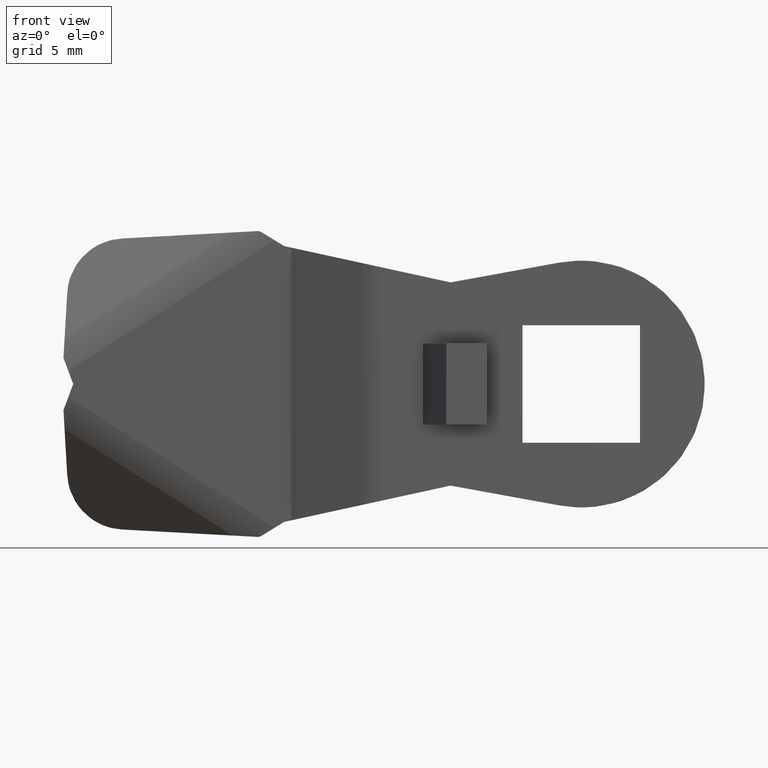
[diagram: clean part render]
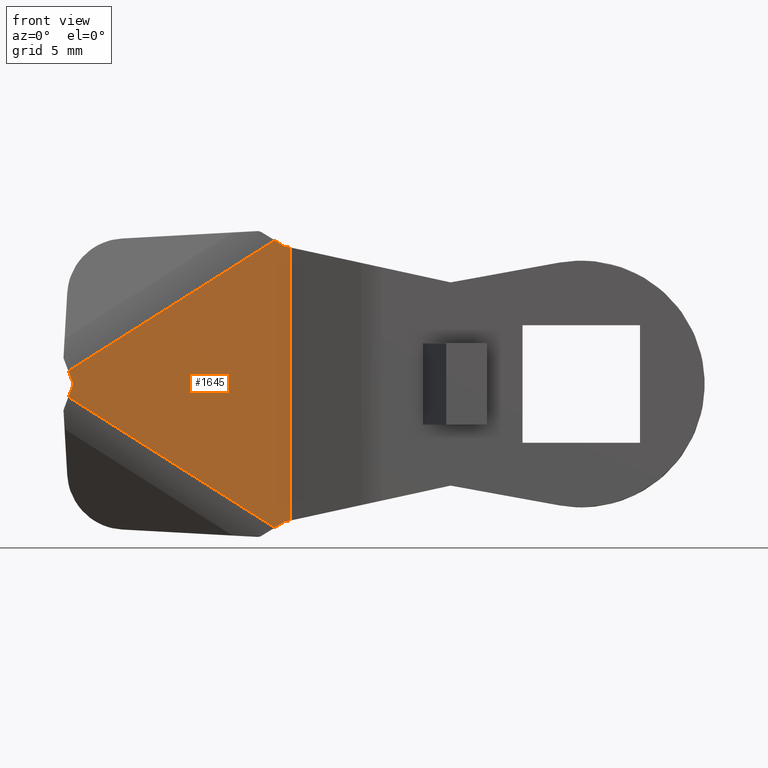
[diagram: same view with one face highlighted and labeled with its STEP entity id]
A machine part, front view. The second image highlights one B-rep face of the part: STEP entity #1645.
In plain terms, the highlighted face is a freeform B-spline surface patch.
Its self-contained STEP definition (entity closure, byte-faithful):
#300=CARTESIAN_POINT('',(-20.008840012867449,-4.000000189989805,-9.400356309381088));
#301=VERTEX_POINT('',#300);
#322=CARTESIAN_POINT('',(-20.008840012867449,-4.000000189989805,9.400356309381129));
#323=VERTEX_POINT('',#322);
#337=CARTESIAN_POINT('',(-20.008840012867449,-4.000000189989805,-9.400356309381088));
#338=CARTESIAN_POINT('',(-20.008840012867449,-4.000000189989805,9.400356309381129));
#339=QUASI_UNIFORM_CURVE('',1,(#337,#338),.UNSPECIFIED.,.F.,.U.);
#340=EDGE_CURVE('',#301,#323,#339,.T.);
#420=CARTESIAN_POINT('',(-21.120222960138801,-4.000000189989805,9.901939888109700));
#421=VERTEX_POINT('',#420);
#473=CARTESIAN_POINT('',(-35.335924522680997,-4.000000189989805,0.898662231830771));
#474=VERTEX_POINT('',#473);
#488=CARTESIAN_POINT('',(-21.120222960138801,-4.000000189989805,9.901939888109700));
#489=CARTESIAN_POINT('',(-35.335924522680997,-4.000000189989805,0.898662231830771));
#490=QUASI_UNIFORM_CURVE('',1,(#488,#489),.UNSPECIFIED.,.F.,.U.);
#491=EDGE_CURVE('',#421,#474,#490,.T.);
#526=CARTESIAN_POINT('',(-21.120222960138801,-4.000000189989805,-9.901939888109700));
#527=VERTEX_POINT('',#526);
#541=CARTESIAN_POINT('',(-35.335924522680898,-4.000000189989805,-0.898662231830660));
#542=VERTEX_POINT('',#541);
#543=CARTESIAN_POINT('',(-35.335924522680898,-4.000000189989805,-0.898662231830660));
#544=CARTESIAN_POINT('',(-21.120222960138801,-4.000000189989805,-9.901939888109700));
#545=QUASI_UNIFORM_CURVE('',1,(#543,#544),.UNSPECIFIED.,.F.,.U.);
#546=EDGE_CURVE('',#542,#527,#545,.T.);
#969=CARTESIAN_POINT('',(-35.000001662411087,-4.000000189989805,1.136868E-013));
#970=VERTEX_POINT('',#969);
#971=CARTESIAN_POINT('',(-35.335924522680898,-4.000000189989805,-0.898662231830660));
#972=CARTESIAN_POINT('',(-35.000001662411087,-4.000000189989805,1.136868E-013));
#973=QUASI_UNIFORM_CURVE('',1,(#971,#972),.UNSPECIFIED.,.F.,.U.);
#974=EDGE_CURVE('',#542,#970,#973,.T.);
#1003=CARTESIAN_POINT('',(-35.000001662411087,-4.000000189989805,1.136868E-013));
#1004=CARTESIAN_POINT('',(-35.335924522680997,-4.000000189989805,0.898662231830771));
#1005=QUASI_UNIFORM_CURVE('',1,(#1003,#1004),.UNSPECIFIED.,.F.,.U.);
#1006=EDGE_CURVE('',#970,#474,#1005,.T.);
#1127=CARTESIAN_POINT('',(-20.465839481394600,-4.000000189989805,-9.500000000000000));
#1128=VERTEX_POINT('',#1127);
#1134=CARTESIAN_POINT('',(-20.465839481394600,-4.000000189989805,-9.500000000000000));
#1135=CARTESIAN_POINT('',(-21.120222960138801,-4.000000189989805,-9.901939888109700));
#1136=QUASI_UNIFORM_CURVE('',1,(#1134,#1135),.UNSPECIFIED.,.F.,.U.);
#1137=EDGE_CURVE('',#1128,#527,#1136,.T.);
#1156=CARTESIAN_POINT('',(-20.465839481394600,-4.000000189989805,9.500000000000000));
#1157=VERTEX_POINT('',#1156);
#1158=CARTESIAN_POINT('',(-21.120222960138801,-4.000000189989805,9.901939888109700));
#1159=CARTESIAN_POINT('',(-20.465839481394600,-4.000000189989805,9.500000000000000));
#1160=QUASI_UNIFORM_CURVE('',1,(#1158,#1159),.UNSPECIFIED.,.F.,.U.);
#1161=EDGE_CURVE('',#421,#1157,#1160,.T.);
#1333=CARTESIAN_POINT('',(-20.008840012867449,-4.000000189989805,9.400356309381129));
#1334=CARTESIAN_POINT('',(-20.465839481394600,-4.000000189989805,9.500000000000000));
#1335=QUASI_UNIFORM_CURVE('',1,(#1333,#1334),.UNSPECIFIED.,.F.,.U.);
#1336=EDGE_CURVE('',#323,#1157,#1335,.T.);
#1361=CARTESIAN_POINT('',(-20.465839481394600,-4.000000189989805,-9.500000000000000));
#1362=CARTESIAN_POINT('',(-20.008840012867449,-4.000000189989805,-9.400356309381088));
#1363=QUASI_UNIFORM_CURVE('',1,(#1361,#1362),.UNSPECIFIED.,.F.,.U.);
#1364=EDGE_CURVE('',#1128,#301,#1363,.T.);
#1629=CARTESIAN_POINT('',(-36.101514036036647,-4.000000189989805,-10.891144202262060));
#1630=CARTESIAN_POINT('',(-36.101514036036647,-4.000000189989805,10.891144202262060));
#1631=CARTESIAN_POINT('',(-19.243252829103628,-4.000000189989805,-10.891144202262060));
#1632=CARTESIAN_POINT('',(-19.243252829103628,-4.000000189989805,10.891144202262060));
#1633=B_SPLINE_SURFACE_WITH_KNOTS('',1,1,((#1629,#1631),(#1630,#1632)),.UNSPECIFIED.,.F.,.F.,.U.,(2,2),(2,2),(0.0,21.782288404524120),(0.0,16.858261206933019),.UNSPECIFIED.);
#1634=ORIENTED_EDGE('',*,*,#1364,.T.);
#1635=ORIENTED_EDGE('',*,*,#340,.T.);
#1636=ORIENTED_EDGE('',*,*,#1336,.T.);
#1637=ORIENTED_EDGE('',*,*,#1161,.F.);
#1638=ORIENTED_EDGE('',*,*,#491,.T.);
#1639=ORIENTED_EDGE('',*,*,#1006,.F.);
#1640=ORIENTED_EDGE('',*,*,#974,.F.);
#1641=ORIENTED_EDGE('',*,*,#546,.T.);
#1642=ORIENTED_EDGE('',*,*,#1137,.F.);
#1643=EDGE_LOOP('',(#1634,#1635,#1636,#1637,#1638,#1639,#1640,#1641,#1642));
#1644=FACE_OUTER_BOUND('',#1643,.T.);
#1645=ADVANCED_FACE('',(#1644),#1633,.F.);